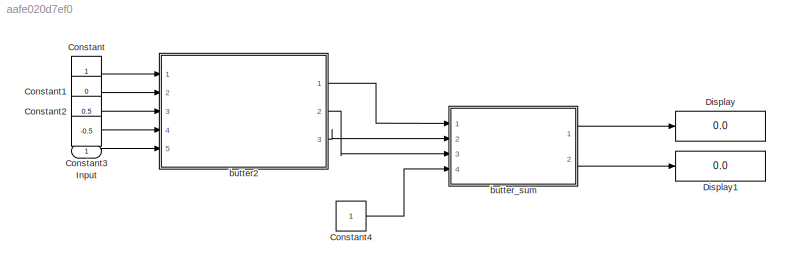
MODEL slx_aafe020d7ef0
KIND model
CONFIG AbsTol = auto
CONFIG EnableMultiTasking = off
CONFIG FixedStep = auto
CONFIG MaxStep = auto
CONFIG MinStep = auto
CONFIG RelTol = 1e-3
CONFIG SampleTimeConstraint = Unconstrained
CONFIG Solver = VariableStepAuto
CONFIG SolverName = VariableStepAuto
CONFIG StartTime = 0.0
CONFIG StopTime = 10.0
BLOCK [Constant] Constant
  OutDataTypeStr = fixdt(0,12,0)
  SampleTime = 0.1
BLOCK [Constant] Constant1
  OutDataTypeStr = fixdt(0,12,0)
  SampleTime = 0.1
  Value = 0
BLOCK [Constant] Constant2
  OutDataTypeStr = fixdt(1,16,15)
  SampleTime = 0.1
  Value = 0.5
BLOCK [Constant] Constant3
  OutDataTypeStr = fixdt(1,16,15)
  SampleTime = 0.1
  Value = -0.5
BLOCK [Constant] Constant4
  OutDataTypeStr = boolean
  SampleTime = 0.1
BLOCK [Display] Display
  Decimation = 1
  Ports = [1]
BLOCK [Display] Display1
  Decimation = 1
  Ports = [1]
BLOCK [Inport] Input
  IconDisplay = Port number
  OutDataTypeStr = boolean
  SampleTime = 0.1
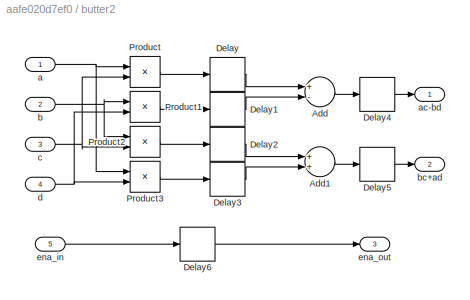
BLOCK [SubSystem] butter2
  Ports = [5, 3]
  RequestExecContextInheritance = off
BLOCK [Sum] butter2/Add
  InputSameDT = off
  Inputs = +-
  OutDataTypeStr = Inherit: Inherit via internal rule
  Ports = [2, 1]
  SaturateOnIntegerOverflow = off
BLOCK [Sum] butter2/Add1
  InputSameDT = off
  OutDataTypeStr = Inherit: Inherit via internal rule
  Ports = [2, 1]
  SaturateOnIntegerOverflow = off
BLOCK [Delay] butter2/Delay
  DelayLength = 1
  InputPortMap = u0
  Ports = [1, 1]
BLOCK [Delay] butter2/Delay1
  DelayLength = 1
  InputPortMap = u0
  Ports = [1, 1]
BLOCK [Delay] butter2/Delay2
  DelayLength = 1
  InputPortMap = u0
  Ports = [1, 1]
BLOCK [Delay] butter2/Delay3
  DelayLength = 1
  InputPortMap = u0
  Ports = [1, 1]
BLOCK [Delay] butter2/Delay4
  DelayLength = 1
  InputPortMap = u0
  Ports = [1, 1]
BLOCK [Delay] butter2/Delay5
  DelayLength = 1
  InputPortMap = u0
  Ports = [1, 1]
BLOCK [Delay] butter2/Delay6
  InputPortMap = u0
  Ports = [1, 1]
BLOCK [Product] butter2/Product
  InputSameDT = off
  OutDataTypeStr = Inherit: Inherit via internal rule
  Ports = [2, 1]
  RndMeth = Floor
  SaturateOnIntegerOverflow = off
BLOCK [Product] butter2/Product1
  InputSameDT = off
  OutDataTypeStr = Inherit: Inherit via internal rule
  Ports = [2, 1]
  RndMeth = Floor
  SaturateOnIntegerOverflow = off
BLOCK [Product] butter2/Product2
  InputSameDT = off
  OutDataTypeStr = Inherit: Inherit via internal rule
  Ports = [2, 1]
  RndMeth = Floor
  SaturateOnIntegerOverflow = off
BLOCK [Product] butter2/Product3
  InputSameDT = off
  OutDataTypeStr = Inherit: Inherit via internal rule
  Ports = [2, 1]
  RndMeth = Floor
  SaturateOnIntegerOverflow = off
BLOCK [Inport] butter2/a
  IconDisplay = Port number
BLOCK [Outport] butter2/ac-bd
  IconDisplay = Port number
BLOCK [Inport] butter2/b
  IconDisplay = Port number
  Port = 2
BLOCK [Outport] butter2/bc+ad
  IconDisplay = Port number
  Port = 2
BLOCK [Inport] butter2/c
  IconDisplay = Port number
  Port = 3
BLOCK [Inport] butter2/d
  IconDisplay = Port number
  Port = 4
BLOCK [Inport] butter2/ena_in
  IconDisplay = Port number
  Port = 5
BLOCK [Outport] butter2/ena_out
  IconDisplay = Port number
  Port = 3
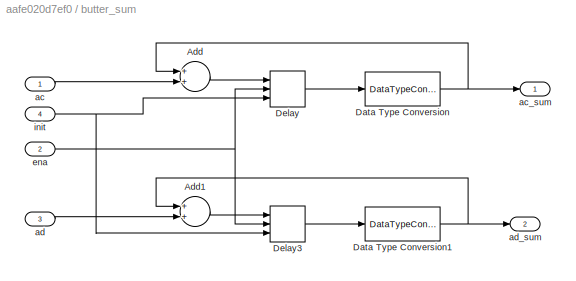
BLOCK [SubSystem] butter_sum
  Ports = [4, 2]
  RequestExecContextInheritance = off
BLOCK [Sum] butter_sum/Add
  InputSameDT = off
  OutDataTypeStr = Inherit: Inherit via internal rule
  Ports = [2, 1]
  SaturateOnIntegerOverflow = off
BLOCK [Sum] butter_sum/Add1
  InputSameDT = off
  OutDataTypeStr = Inherit: Inherit via internal rule
  Ports = [2, 1]
  SaturateOnIntegerOverflow = off
BLOCK [DataTypeConversion] butter_sum/Data Type Conversion
  OutDataTypeStr = fixdt(1,32,15)
  RndMeth = Floor
  SaturateOnIntegerOverflow = off
BLOCK [DataTypeConversion] butter_sum/Data Type Conversion1
  OutDataTypeStr = fixdt(1,32,15)
  RndMeth = Floor
  SaturateOnIntegerOverflow = off
BLOCK [Delay] butter_sum/Delay
  DelayLength = 1
  ExternalReset = Level
  InputPortMap = u0,e6,r5
  Ports = [3, 1]
  SampleTime = 0.1
  ShowEnablePort = on
BLOCK [Delay] butter_sum/Delay3
  DelayLength = 1
  ExternalReset = Level
  InputPortMap = u0,e6,r5
  Ports = [3, 1]
  SampleTime = 0.1
  ShowEnablePort = on
BLOCK [Inport] butter_sum/ac
  IconDisplay = Port number
BLOCK [Outport] butter_sum/ac_sum
  IconDisplay = Port number
BLOCK [Inport] butter_sum/ad
  IconDisplay = Port number
  Port = 3
BLOCK [Outport] butter_sum/ad_sum
  IconDisplay = Port number
  Port = 2
BLOCK [Inport] butter_sum/ena
  IconDisplay = Port number
  Port = 2
BLOCK [Inport] butter_sum/init
  IconDisplay = Port number
  Port = 4
LINE Constant1:1 -> butter2:2
LINE Constant2:1 -> butter2:3
LINE Constant3:1 -> butter2:4
LINE Constant4:1 -> butter_sum:4
LINE Constant:1 -> butter2:1
LINE Input:1 -> butter2:5
LINE butter2/Add1:1 -> butter2/Delay5:1
LINE butter2/Add:1 -> butter2/Delay4:1
LINE butter2/Delay1:1 -> butter2/Add:2
LINE butter2/Delay2:1 -> butter2/Add1:1
LINE butter2/Delay3:1 -> butter2/Add1:2
LINE butter2/Delay4:1 -> butter2/ac-bd:1
LINE butter2/Delay5:1 -> butter2/bc+ad:1
LINE butter2/Delay6:1 -> butter2/ena_out:1
LINE butter2/Delay:1 -> butter2/Add:1
LINE butter2/Product1:1 -> butter2/Delay1:1
LINE butter2/Product2:1 -> butter2/Delay2:1
LINE butter2/Product3:1 -> butter2/Delay3:1
LINE butter2/Product:1 -> butter2/Delay:1
NET butter2/a:1 -> butter2/Product3:1, butter2/Product:1
NET butter2/b:1 -> butter2/Product1:1, butter2/Product2:1
NET butter2/c:1 -> butter2/Product2:2, butter2/Product:2
NET butter2/d:1 -> butter2/Product1:2, butter2/Product3:2
LINE butter2/ena_in:1 -> butter2/Delay6:1
LINE butter2:1 -> butter_sum:1
LINE butter2:2 -> butter_sum:3
LINE butter2:3 -> butter_sum:2
LINE butter_sum/Add1:1 -> butter_sum/Delay3:1
LINE butter_sum/Add:1 -> butter_sum/Delay:1
NET butter_sum/Data Type Conversion1:1 -> butter_sum/Add1:1, butter_sum/ad_sum:1
NET butter_sum/Data Type Conversion:1 -> butter_sum/Add:1, butter_sum/ac_sum:1
LINE butter_sum/Delay3:1 -> butter_sum/Data Type Conversion1:1
LINE butter_sum/Delay:1 -> butter_sum/Data Type Conversion:1
LINE butter_sum/ac:1 -> butter_sum/Add:2
LINE butter_sum/ad:1 -> butter_sum/Add1:2
NET butter_sum/ena:1 -> butter_sum/Delay3:2, butter_sum/Delay:2
NET butter_sum/init:1 -> butter_sum/Delay3:3, butter_sum/Delay:3
LINE butter_sum:1 -> Display:1
LINE butter_sum:2 -> Display1:1
note: NET lines group one-source signal fan-out (src -> all destinations, sorted); 1:1 wires keep LINE
